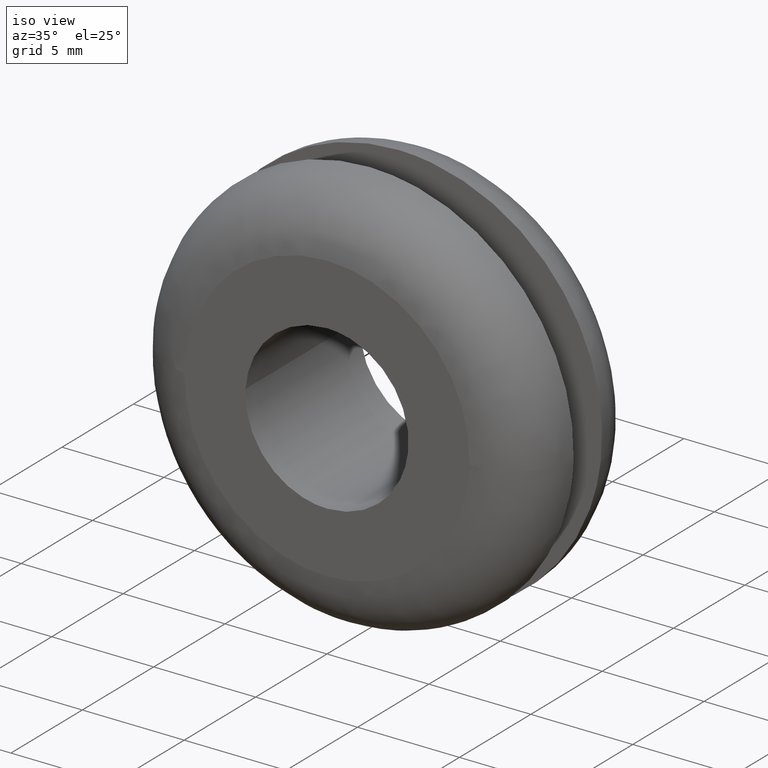
[diagram: clean part render]
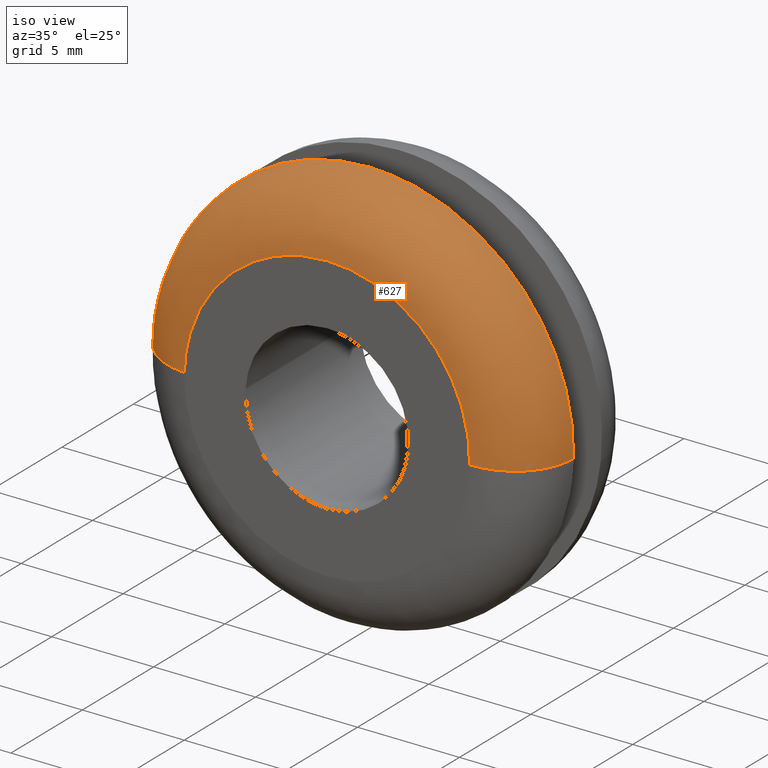
[diagram: same view with one face highlighted and labeled with its STEP entity id]
A machine part, iso view. The second image highlights one B-rep face of the part: STEP entity #627.
In plain terms, the highlighted face is a freeform B-spline surface patch.
Its self-contained STEP definition (entity closure, byte-faithful):
#443=CARTESIAN_POINT('',(-9.996841892832897,2.999999999971457,0.251300954437361));
#444=VERTEX_POINT('',#443);
#462=CARTESIAN_POINT('',(9.996841892832897,2.999999999971457,-0.251300954437362));
#463=VERTEX_POINT('',#462);
#477=CARTESIAN_POINT('',(6.997789325016047,-1.038440E-016,-0.175910668105941));
#478=VERTEX_POINT('',#477);
#479=CARTESIAN_POINT('',(9.996841892832897,2.999999999971456,-0.251300954437362));
#480=CARTESIAN_POINT('',(9.996841892775928,6.600574E-011,-0.251300954431939));
#481=CARTESIAN_POINT('',(6.997789325016048,-1.038440E-016,-0.175910668105941));
#489=(BOUNDED_CURVE()B_SPLINE_CURVE(2,(#479,#480,#481),.UNSPECIFIED.,.F.,.U.)B_SPLINE_CURVE_WITH_KNOTS((3,3),(-1.723441281965177,-0.263586878950601),.UNSPECIFIED.)CURVE()GEOMETRIC_REPRESENTATION_ITEM()RATIONAL_B_SPLINE_CURVE((0.883897567131759,0.626638727245067,0.888510409054381))REPRESENTATION_ITEM(''));
#490=EDGE_CURVE('',#463,#478,#489,.T.);
#507=CARTESIAN_POINT('',(-6.997789325016046,-1.038440E-016,0.175910668105943));
#508=VERTEX_POINT('',#507);
#524=CARTESIAN_POINT('',(-9.996841892832897,2.999999999971456,0.251300954437361));
#525=CARTESIAN_POINT('',(-9.996841892775928,6.600574E-011,0.251300954431940));
#526=CARTESIAN_POINT('',(-6.997789325016046,-1.038440E-016,0.175910668105943));
#534=(BOUNDED_CURVE()B_SPLINE_CURVE(2,(#524,#525,#526),.UNSPECIFIED.,.F.,.U.)B_SPLINE_CURVE_WITH_KNOTS((3,3),(-1.723441281965177,-0.263586878950601),.UNSPECIFIED.)CURVE()GEOMETRIC_REPRESENTATION_ITEM()RATIONAL_B_SPLINE_CURVE((0.883897567131759,0.626638727245067,0.888510409054381))REPRESENTATION_ITEM(''));
#535=EDGE_CURVE('',#444,#508,#534,.T.);
#540=CARTESIAN_POINT('',(9.989543121437887,3.209172553633379,-0.251117477667667));
#541=CARTESIAN_POINT('',(10.240660599105553,3.209172553633380,9.738425643770221));
#542=CARTESIAN_POINT('',(0.251117477667668,3.209172553633379,9.989543121437887));
#543=CARTESIAN_POINT('',(-9.738425643770221,3.209172553633380,10.240660599105558));
#544=CARTESIAN_POINT('',(-9.989543121437887,3.209172553633379,0.251117477667668));
#545=CARTESIAN_POINT('',(10.229985953123554,-0.232007044478159,-0.257161737818724));
#546=CARTESIAN_POINT('',(10.487147690942278,-0.232007044478159,9.972824215304829));
#547=CARTESIAN_POINT('',(0.257161737818725,-0.232007044478159,10.229985953123554));
#548=CARTESIAN_POINT('',(-9.972824215304829,-0.232007044478159,10.487147690942280));
#549=CARTESIAN_POINT('',(-10.229985953123554,-0.232007044478159,0.257161737818726));
#550=CARTESIAN_POINT('',(6.789803307728222,0.007222948350152,-0.170682308466863));
#551=CARTESIAN_POINT('',(6.960485616195085,0.007222948350151,6.619120999261360));
#552=CARTESIAN_POINT('',(0.170682308466864,0.007222948350152,6.789803307728222));
#553=CARTESIAN_POINT('',(-6.619120999261360,0.007222948350151,6.960485616195085));
#554=CARTESIAN_POINT('',(-6.789803307728222,0.007222948350152,0.170682308466864));
#562=(BOUNDED_SURFACE()B_SPLINE_SURFACE(2,2,((#540,#545,#550),(#541,#546,#551),(#542,#547,#552),(#543,#548,#553),(#544,#549,#554)),.UNSPECIFIED.,.F.,.F.,.U.)B_SPLINE_SURFACE_WITH_KNOTS((3,2,3),(3,3),(0.0,16.556445674216121,33.112891348432242),(0.0,5.467110975578633),.UNSPECIFIED.)GEOMETRIC_REPRESENTATION_ITEM()RATIONAL_B_SPLINE_SURFACE(((0.910892941386805,0.599412934105556,0.915966621324616),(0.644098575789570,0.423848950436964,0.647686209279166),(0.910892941386805,0.599412934105556,0.915966621324616),(0.644098575789570,0.423848950436964,0.647686209279166),(0.910892941386805,0.599412934105556,0.915966621324616)))REPRESENTATION_ITEM('')SURFACE());
#563=CARTESIAN_POINT('',(0.0,3.0,10.0));
#564=VERTEX_POINT('',#563);
#565=CARTESIAN_POINT('',(0.0,3.0,10.0));
#566=CARTESIAN_POINT('',(-9.751778761798668,3.0,10.000000000000002));
#567=CARTESIAN_POINT('',(-9.996841892832897,2.999999999971457,0.251300954437361));
#575=(BOUNDED_CURVE()B_SPLINE_CURVE(2,(#565,#566,#567),.UNSPECIFIED.,.F.,.U.)B_SPLINE_CURVE_WITH_KNOTS((3,3),(0.500000000000000,0.745579891769667),.UNSPECIFIED.)CURVE()GEOMETRIC_REPRESENTATION_ITEM()RATIONAL_B_SPLINE_CURVE((1.0,0.712285260094892,0.989826157681259))REPRESENTATION_ITEM(''));
#576=EDGE_CURVE('',#564,#444,#575,.T.);
#577=ORIENTED_EDGE('',*,*,#576,.T.);
#578=ORIENTED_EDGE('',*,*,#535,.T.);
#579=CARTESIAN_POINT('',(0.0,-1.332268E-015,7.0));
#580=VERTEX_POINT('',#579);
#581=CARTESIAN_POINT('',(0.0,-1.332268E-015,7.0));
#582=CARTESIAN_POINT('',(-6.826245133261146,-1.332268E-015,6.999999999999999));
#583=CARTESIAN_POINT('',(-6.997789325016046,-1.038440E-016,0.175910668105943));
#591=(BOUNDED_CURVE()B_SPLINE_CURVE(2,(#581,#582,#583),.UNSPECIFIED.,.F.,.U.)B_SPLINE_CURVE_WITH_KNOTS((3,3),(0.500000000000000,0.745579891769721),.UNSPECIFIED.)CURVE()GEOMETRIC_REPRESENTATION_ITEM()RATIONAL_B_SPLINE_CURVE((1.0,0.712285260094829,0.989826157681379))REPRESENTATION_ITEM(''));
#592=EDGE_CURVE('',#580,#508,#591,.T.);
#593=ORIENTED_EDGE('',*,*,#592,.F.);
#594=CARTESIAN_POINT('',(6.997789325016047,-1.038440E-016,-0.175910668105941));
#595=CARTESIAN_POINT('',(6.999999999999999,-1.332268E-015,-0.087969224865407));
#596=CARTESIAN_POINT('',(7.0,-1.332268E-015,-1.836910E-016));
#597=CARTESIAN_POINT('',(6.999999999999999,-1.332268E-015,6.999999999999999));
#598=CARTESIAN_POINT('',(0.0,-1.332268E-015,7.0));
#606=(BOUNDED_CURVE()B_SPLINE_CURVE(2,(#594,#595,#596,#597,#598),.UNSPECIFIED.,.F.,.U.)B_SPLINE_CURVE_WITH_KNOTS((3,2,3),(0.245579891769720,0.250000000000000,0.500000000000000),.UNSPECIFIED.)CURVE()GEOMETRIC_REPRESENTATION_ITEM()RATIONAL_B_SPLINE_CURVE((0.989826157681378,0.994821521091718,1.0,0.707106781186547,1.0))REPRESENTATION_ITEM(''));
#607=EDGE_CURVE('',#478,#580,#606,.T.);
#608=ORIENTED_EDGE('',*,*,#607,.F.);
#609=ORIENTED_EDGE('',*,*,#490,.F.);
#610=CARTESIAN_POINT('',(9.996841892832897,2.999999999971457,-0.251300954437362));
#611=CARTESIAN_POINT('',(10.0,3.000000000000000,-0.125670321237785));
#612=CARTESIAN_POINT('',(10.0,3.0,-1.836910E-016));
#613=CARTESIAN_POINT('',(10.000000000000002,3.0,10.000000000000002));
#614=CARTESIAN_POINT('',(0.0,3.0,10.0));
#622=(BOUNDED_CURVE()B_SPLINE_CURVE(2,(#610,#611,#612,#613,#614),.UNSPECIFIED.,.F.,.U.)B_SPLINE_CURVE_WITH_KNOTS((3,2,3),(0.245579891769668,0.250000000000000,0.500000000000000),.UNSPECIFIED.)CURVE()GEOMETRIC_REPRESENTATION_ITEM()RATIONAL_B_SPLINE_CURVE((0.989826157681261,0.994821521091657,1.0,0.707106781186548,1.0))REPRESENTATION_ITEM(''));
#623=EDGE_CURVE('',#463,#564,#622,.T.);
#624=ORIENTED_EDGE('',*,*,#623,.T.);
#625=EDGE_LOOP('',(#577,#578,#593,#608,#609,#624));
#626=FACE_OUTER_BOUND('',#625,.T.);
#627=ADVANCED_FACE('',(#626),#562,.T.);